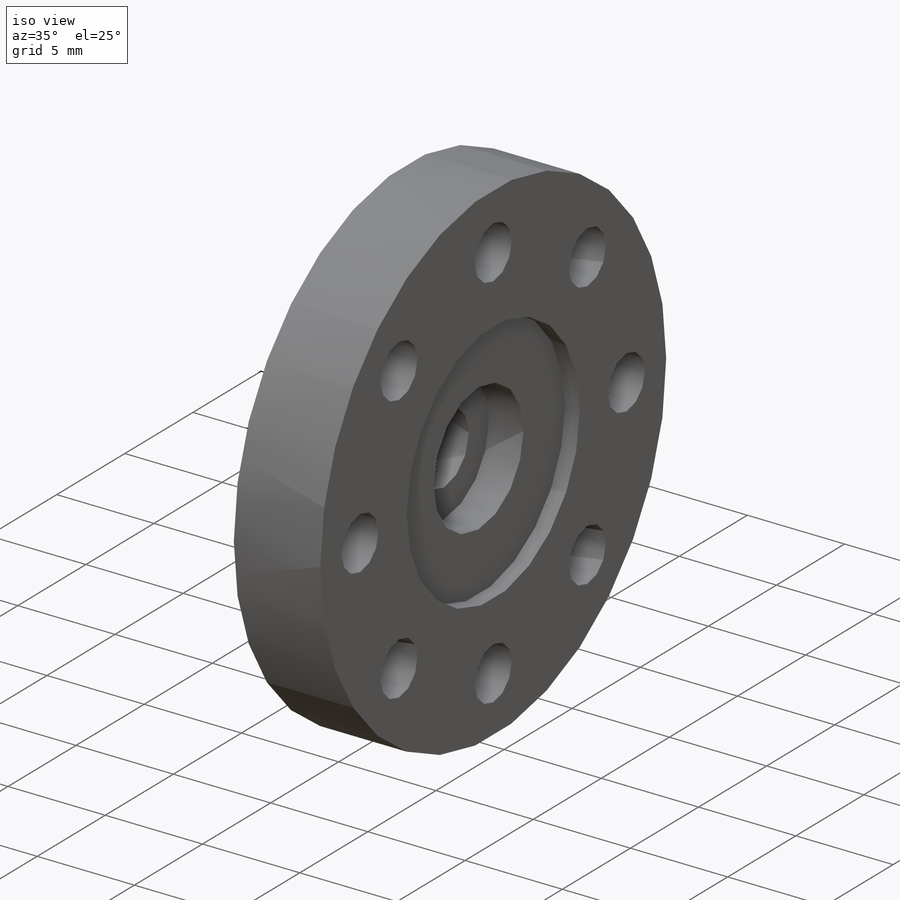
[diagram: iso view]
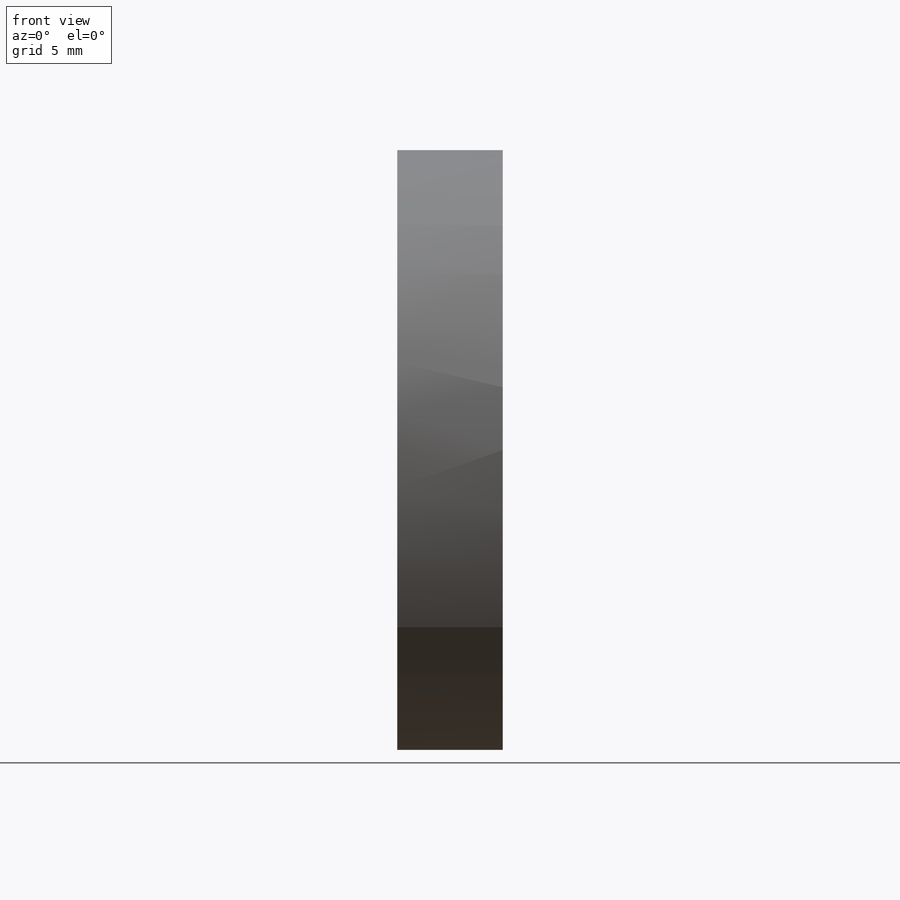
[diagram: front view]
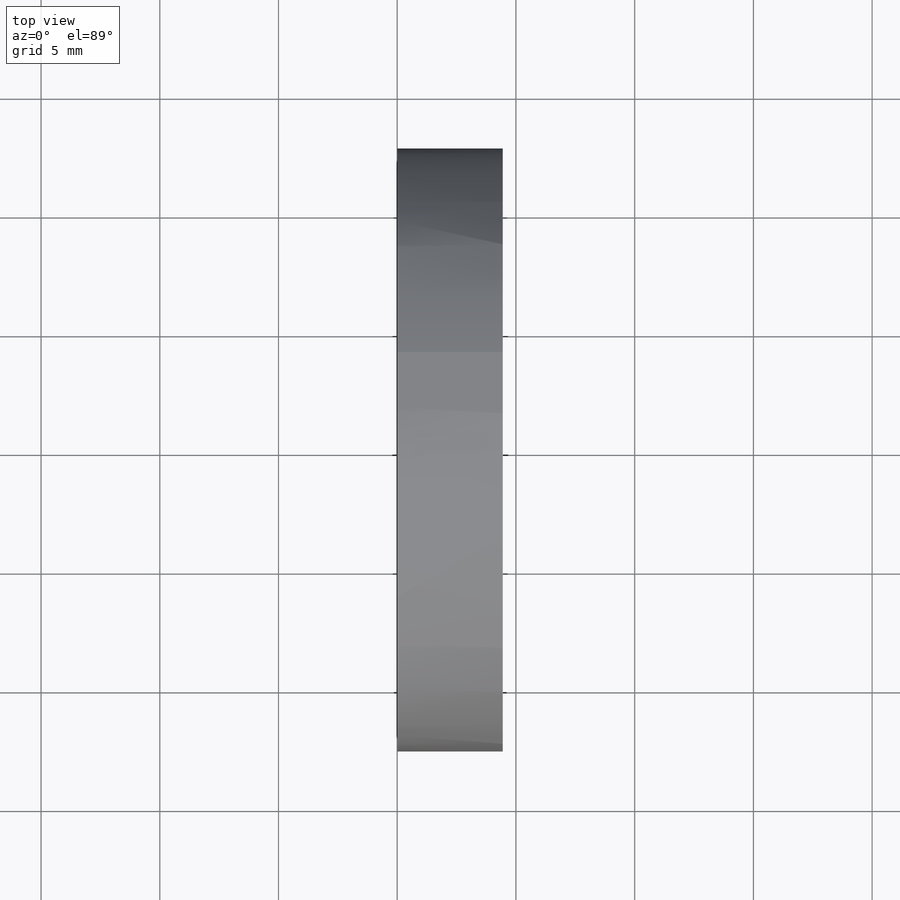
[diagram: top view]
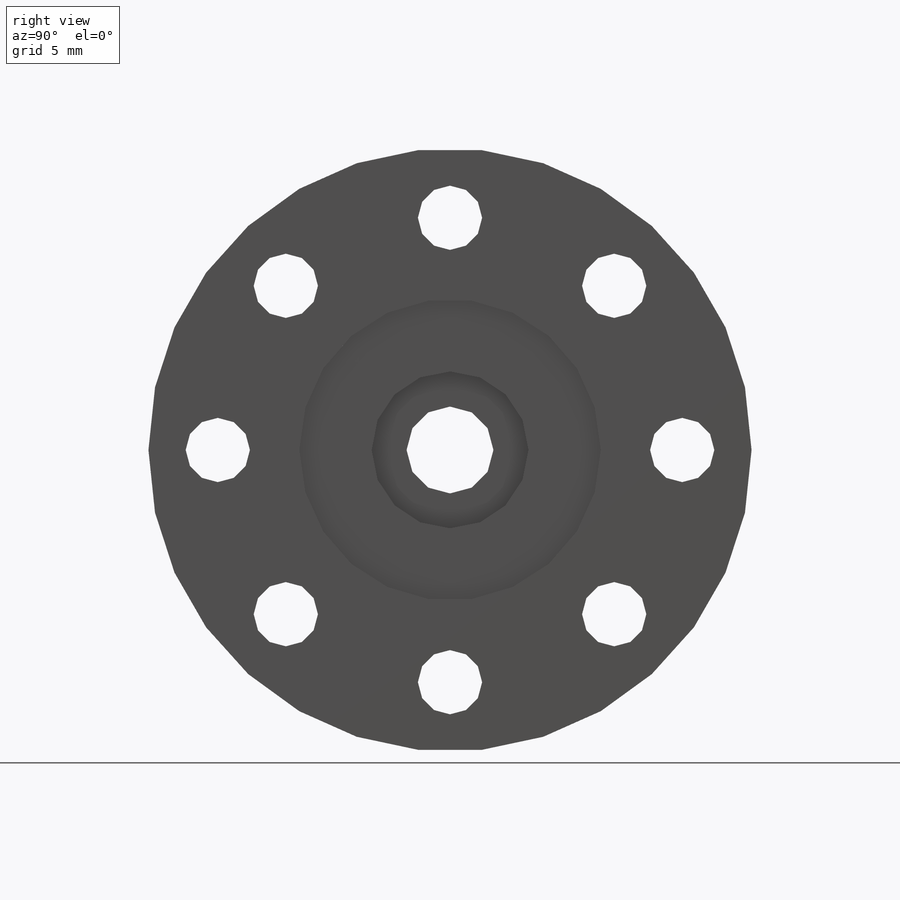
[diagram: right view]
SOLIDWORKS PART (.sldprt)
format: sldprt  version: not decoded by parser v0  size: 214,016 bytes
history: native  units: mm
features: sketch x4, cut_extrude x3, material x1, extrude x1 (+12 scaffold rows collapsed)
feature tree (21):
  scaffold x12  (default folders/planes/origin — collapsed)
  material  "Material <not specified>"
  sketch  "Sketch1"  dims[D1=25.4mm D3=2.7051mm D2=2.921mm D4=8.0]
  extrude  "Boss-Extrude1"  Depth=4.445mm
  sketch  "Sketch2"  dims[D1=12.7mm]
  cut_extrude  "Cut-Extrude1"  Depth=0.762mm
  sketch  "Sketch3"  dims[D1=6.604mm]
  cut_extrude  "Cut-Extrude2"  Depth=1.778mm
  sketch  "Sketch4"  dims[D1=3.6576mm]
  cut_extrude  "Cut-Extrude3"  [1 undecoded]
decode coverage: 7 of 8 modeling features carry decoded parameters
note: 1 parameter value undecoded
note: suppression state not decoded; provenance and decode notes live in map.json
